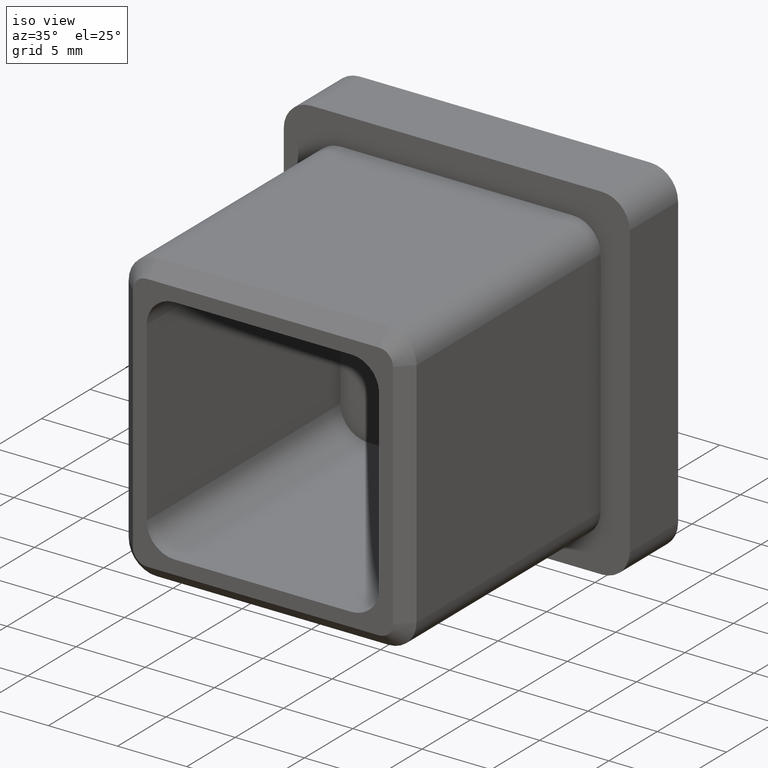
[diagram: clean part render]
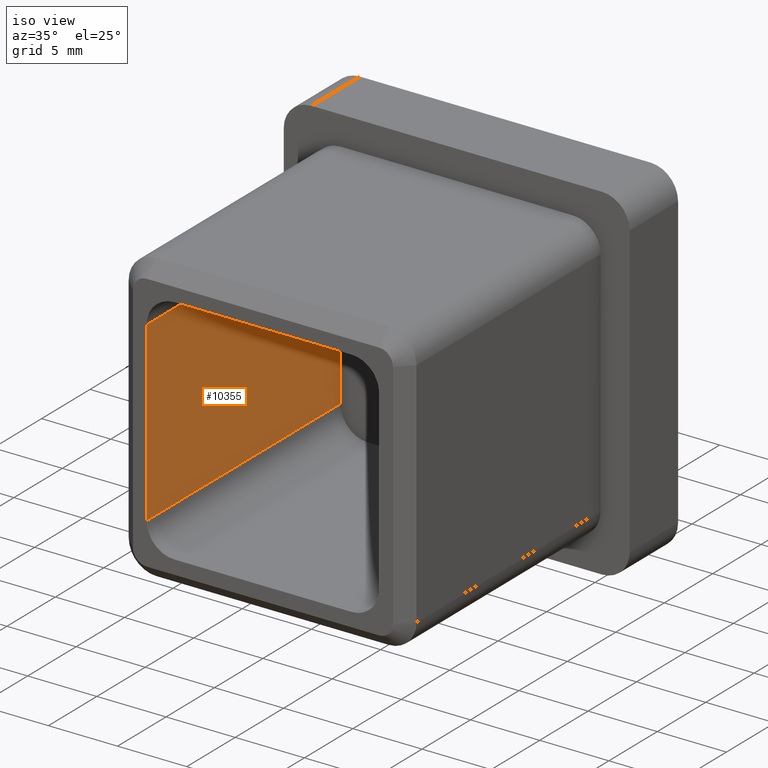
[diagram: same view with one face highlighted and labeled with its STEP entity id]
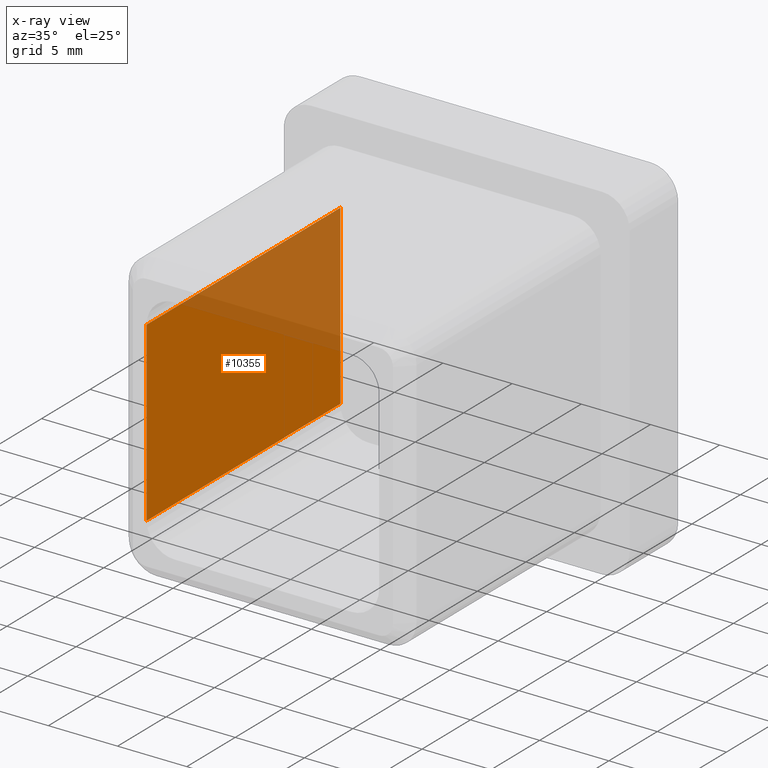
[diagram: x-ray of the same camera — body ghosted, the highlighted face saturated]
A machine part, iso view. The second image highlights one B-rep face of the part: STEP entity #10355.
The next image is the same camera in x-ray: the body ghosted, the highlighted face saturated — about 30% of this face is hidden behind the body in this view.
In plain terms, the highlighted planar face has unit normal (1, 0, 0).
Its self-contained STEP definition (entity closure, byte-faithful):
#558 = VERTEX_POINT ( 'NONE', #727 ) ;
#727 = CARTESIAN_POINT ( 'NONE',  ( -8.400000000000003900, -20.00000000000000000, 6.400000000000004800 ) ) ;
#1415 = CARTESIAN_POINT ( 'NONE',  ( -8.400000000000003900, -20.00000000000000000, -6.400000000000004800 ) ) ;
#2586 = VERTEX_POINT ( 'NONE', #10893 ) ;
#3112 = LINE ( 'NONE', #9346, #11915 ) ;
#3927 = AXIS2_PLACEMENT_3D ( 'NONE', #5742, #5584, #4595 ) ;
#4595 = DIRECTION ( 'NONE',  ( 0.0000000000000000000, 0.0000000000000000000, -1.000000000000000000 ) ) ;
#4696 = CARTESIAN_POINT ( 'NONE',  ( -8.400000000000003900, 0.0000000000000000000, 8.400000000000003900 ) ) ;
#5584 = DIRECTION ( 'NONE',  ( 1.000000000000000000, 0.0000000000000000000, 0.0000000000000000000 ) ) ;
#5742 = CARTESIAN_POINT ( 'NONE',  ( -8.400000000000003900, -20.00000000000000000, 8.400000000000003900 ) ) ;
#5767 = VERTEX_POINT ( 'NONE', #1415 ) ;
#5852 = VERTEX_POINT ( 'NONE', #10866 ) ;
#6637 = EDGE_CURVE ( 'NONE', #5852, #558, #3112, .T. ) ;
#7319 = EDGE_CURVE ( 'NONE', #5767, #2586, #7320, .T. ) ;
#7320 = LINE ( 'NONE', #13561, #14310 ) ;
#7499 = LINE ( 'NONE', #12738, #13770 ) ;
#7731 = DIRECTION ( 'NONE',  ( -0.0000000000000000000, -1.000000000000000000, 0.0000000000000000000 ) ) ;
#7824 = ORIENTED_EDGE ( 'NONE', *, *, #13605, .T. ) ;
#8228 = VECTOR ( 'NONE', #13875, 1000.000000000000000 ) ;
#8953 = DIRECTION ( 'NONE',  ( 0.0000000000000000000, 1.000000000000000000, -0.0000000000000000000 ) ) ;
#9346 = CARTESIAN_POINT ( 'NONE',  ( -8.400000000000003900, -20.00000000000000000, 6.400000000000004800 ) ) ;
#9782 = FACE_OUTER_BOUND ( 'NONE', #11744, .T. ) ;
#10355 = ADVANCED_FACE ( 'NONE', ( #9782 ), #13572, .T. ) ;
#10486 = ORIENTED_EDGE ( 'NONE', *, *, #6637, .T. ) ;
#10836 = DIRECTION ( 'NONE',  ( 0.0000000000000000000, -0.0000000000000000000, -1.000000000000000000 ) ) ;
#10866 = CARTESIAN_POINT ( 'NONE',  ( -8.400000000000003900, 0.0000000000000000000, 6.400000000000004800 ) ) ;
#10893 = CARTESIAN_POINT ( 'NONE',  ( -8.400000000000003900, 0.0000000000000000000, -6.400000000000004800 ) ) ;
#11288 = LINE ( 'NONE', #4696, #8228 ) ;
#11744 = EDGE_LOOP ( 'NONE', ( #13387, #10486, #7824, #13701 ) ) ;
#11915 = VECTOR ( 'NONE', #7731, 1000.000000000000000 ) ;
#12738 = CARTESIAN_POINT ( 'NONE',  ( -8.400000000000003900, -20.00000000000000000, 8.400000000000003900 ) ) ;
#12932 = EDGE_CURVE ( 'NONE', #5852, #2586, #11288, .T. ) ;
#13387 = ORIENTED_EDGE ( 'NONE', *, *, #12932, .F. ) ;
#13561 = CARTESIAN_POINT ( 'NONE',  ( -8.400000000000003900, 0.0000000000000000000, -6.400000000000004800 ) ) ;
#13572 = PLANE ( 'NONE',  #3927 ) ;
#13605 = EDGE_CURVE ( 'NONE', #558, #5767, #7499, .T. ) ;
#13701 = ORIENTED_EDGE ( 'NONE', *, *, #7319, .T. ) ;
#13770 = VECTOR ( 'NONE', #10836, 1000.000000000000000 ) ;
#13875 = DIRECTION ( 'NONE',  ( 0.0000000000000000000, -0.0000000000000000000, -1.000000000000000000 ) ) ;
#14310 = VECTOR ( 'NONE', #8953, 1000.000000000000000 ) ;